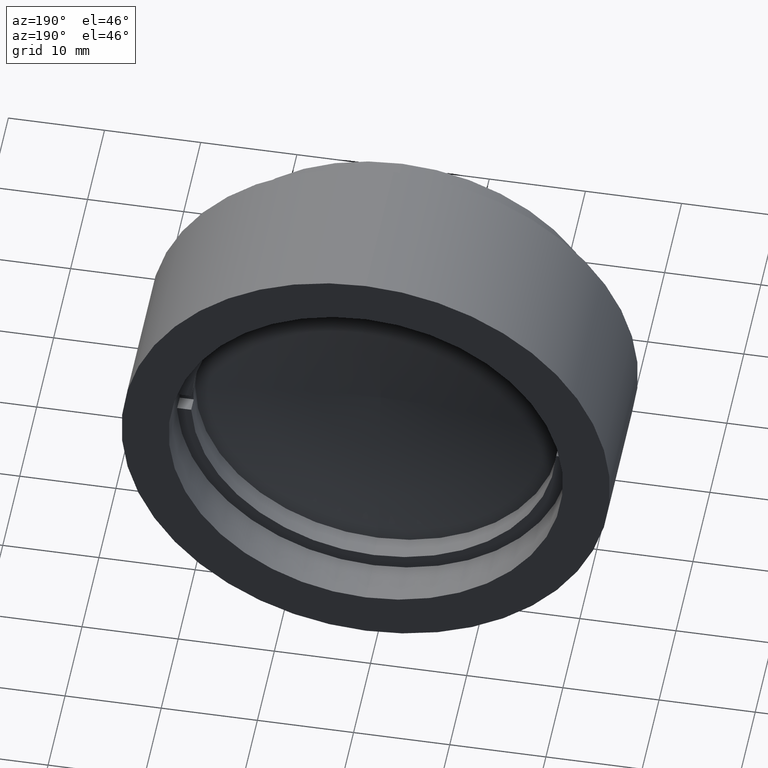
[diagram: clean part render]
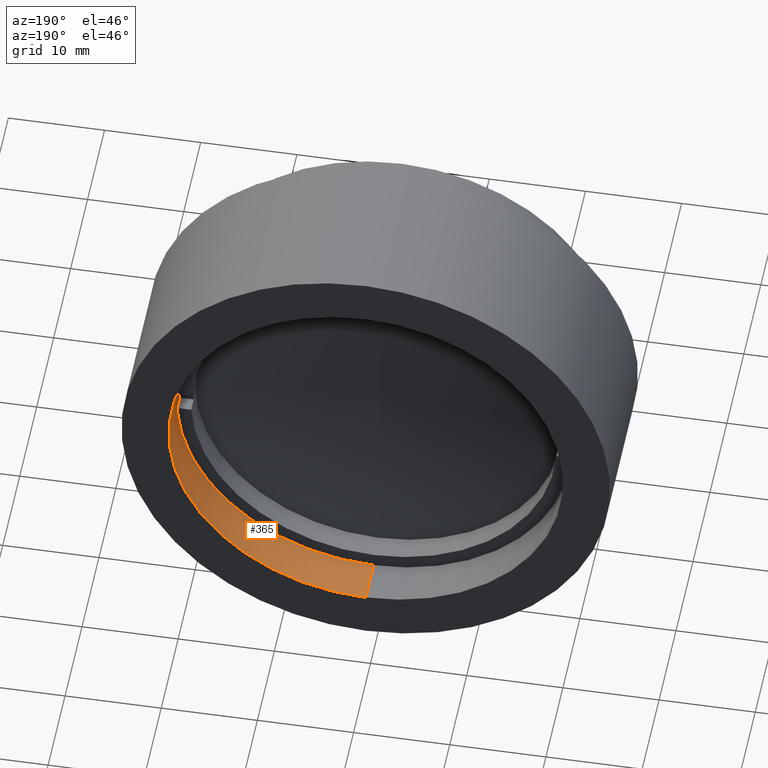
[diagram: same view with one face highlighted and labeled with its STEP entity id]
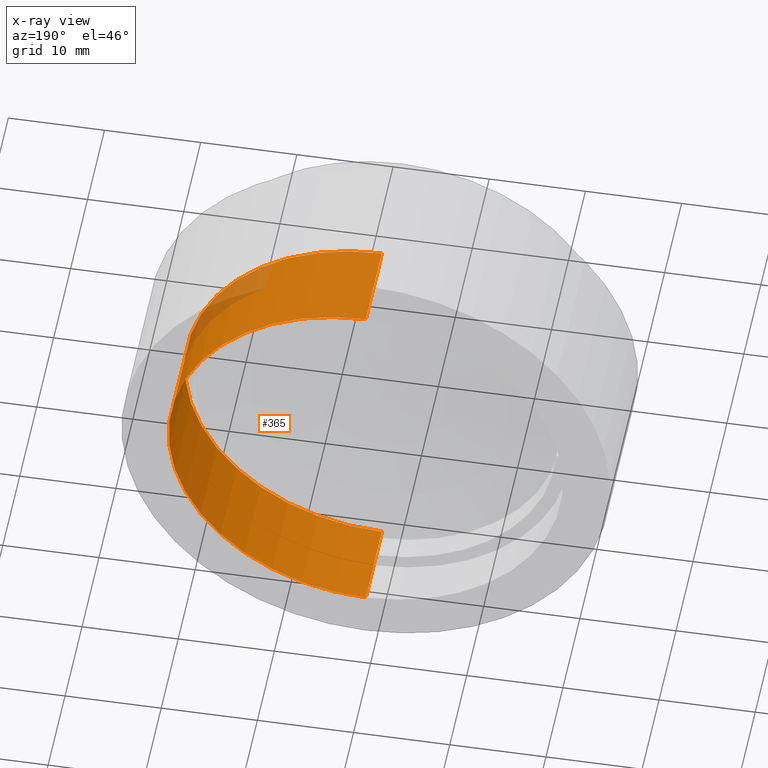
[diagram: x-ray of the same camera — body ghosted, the highlighted face saturated]
A machine part, auxiliary view. The second image highlights one B-rep face of the part: STEP entity #365.
The next image is the same camera in x-ray: the body ghosted, the highlighted face saturated — about 6% of this face is hidden behind the body in this view.
In plain terms, the highlighted cylindrical surface (partial cylindrical patch) has radius 20.5 mm, axis along (0, -1, 0).
Its self-contained STEP definition (entity closure, byte-faithful):
#7 = VERTEX_POINT ( 'NONE', #893 ) ;
#47 = DIRECTION ( 'NONE',  ( 0.000000000000000000, 0.000000000000000000, -1.000000000000000000 ) ) ;
#53 = CARTESIAN_POINT ( 'NONE',  ( -8.905217641199669742, -3.418806130578253111, 26.65036394347453097 ) ) ;
#65 = VECTOR ( 'NONE', #373, 1000.000000000000000 ) ;
#71 = EDGE_CURVE ( 'NONE', #887, #7, #411, .T. ) ;
#102 = CIRCLE ( 'NONE', #331, 20.50000000000000000 ) ;
#115 = DIRECTION ( 'NONE',  ( 0.000000000000000000, -1.000000000000000000, 0.000000000000000000 ) ) ;
#142 = AXIS2_PLACEMENT_3D ( 'NONE', #866, #446, #1263 ) ;
#192 = EDGE_CURVE ( 'NONE', #7, #636, #1026, .T. ) ;
#202 = CARTESIAN_POINT ( 'NONE',  ( -8.905217641199667966, -12.91880613057825045, 47.15036394347453808 ) ) ;
#219 = CARTESIAN_POINT ( 'NONE',  ( -8.905217641199669742, -12.91880613057825045, 26.65036394347453097 ) ) ;
#260 = EDGE_LOOP ( 'NONE', ( #850, #815, #344, #1293 ) ) ;
#270 = CARTESIAN_POINT ( 'NONE',  ( -8.905217641199667966, -3.418806130578253111, 47.15036394347453808 ) ) ;
#292 = CARTESIAN_POINT ( 'NONE',  ( -8.905217641199669742, -24.91880613057825045, 6.150363943474530082 ) ) ;
#314 = EDGE_CURVE ( 'NONE', #887, #826, #102, .T. ) ;
#331 = AXIS2_PLACEMENT_3D ( 'NONE', #53, #945, #47 ) ;
#344 = ORIENTED_EDGE ( 'NONE', *, *, #71, .T. ) ;
#365 = ADVANCED_FACE ( 'NONE', ( #1082 ), #1060, .F. ) ;
#373 = DIRECTION ( 'NONE',  ( 0.000000000000000000, -1.000000000000000000, 0.000000000000000000 ) ) ;
#411 = LINE ( 'NONE', #292, #750 ) ;
#446 = DIRECTION ( 'NONE',  ( 0.000000000000000000, -1.000000000000000000, 0.000000000000000000 ) ) ;
#452 = AXIS2_PLACEMENT_3D ( 'NONE', #219, #115, #1019 ) ;
#465 = LINE ( 'NONE', #1160, #65 ) ;
#636 = VERTEX_POINT ( 'NONE', #202 ) ;
#750 = VECTOR ( 'NONE', #807, 1000.000000000000000 ) ;
#807 = DIRECTION ( 'NONE',  ( 0.000000000000000000, -1.000000000000000000, 0.000000000000000000 ) ) ;
#815 = ORIENTED_EDGE ( 'NONE', *, *, #314, .F. ) ;
#826 = VERTEX_POINT ( 'NONE', #270 ) ;
#850 = ORIENTED_EDGE ( 'NONE', *, *, #1296, .F. ) ;
#866 = CARTESIAN_POINT ( 'NONE',  ( -8.905217641199669742, -24.91880613057825045, 26.65036394347453097 ) ) ;
#887 = VERTEX_POINT ( 'NONE', #1063 ) ;
#893 = CARTESIAN_POINT ( 'NONE',  ( -8.905217641199669742, -12.91880613057825045, 6.150363943474530082 ) ) ;
#945 = DIRECTION ( 'NONE',  ( 0.000000000000000000, -1.000000000000000000, 0.000000000000000000 ) ) ;
#1019 = DIRECTION ( 'NONE',  ( 0.000000000000000000, 0.000000000000000000, -1.000000000000000000 ) ) ;
#1026 = CIRCLE ( 'NONE', #452, 20.50000000000000000 ) ;
#1060 = CYLINDRICAL_SURFACE ( 'NONE', #142, 20.50000000000000000 ) ;
#1063 = CARTESIAN_POINT ( 'NONE',  ( -8.905217641199669742, -3.418806130578253111, 6.150363943474530082 ) ) ;
#1082 = FACE_OUTER_BOUND ( 'NONE', #260, .T. ) ;
#1160 = CARTESIAN_POINT ( 'NONE',  ( -8.905217641199667966, -24.91880613057825045, 47.15036394347453808 ) ) ;
#1263 = DIRECTION ( 'NONE',  ( 0.000000000000000000, 0.000000000000000000, -1.000000000000000000 ) ) ;
#1293 = ORIENTED_EDGE ( 'NONE', *, *, #192, .T. ) ;
#1296 = EDGE_CURVE ( 'NONE', #826, #636, #465, .T. ) ;